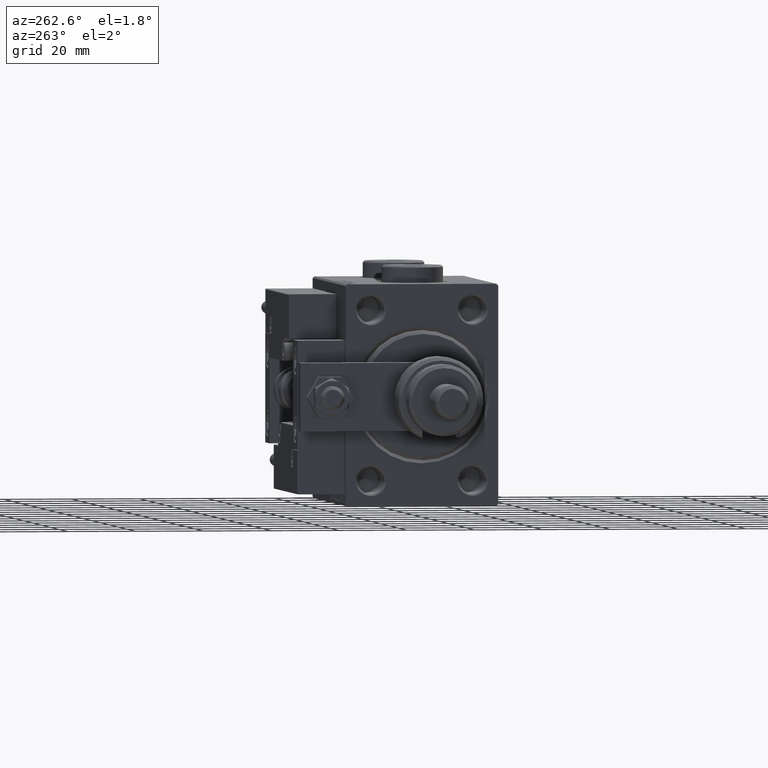
[diagram: clean part render]
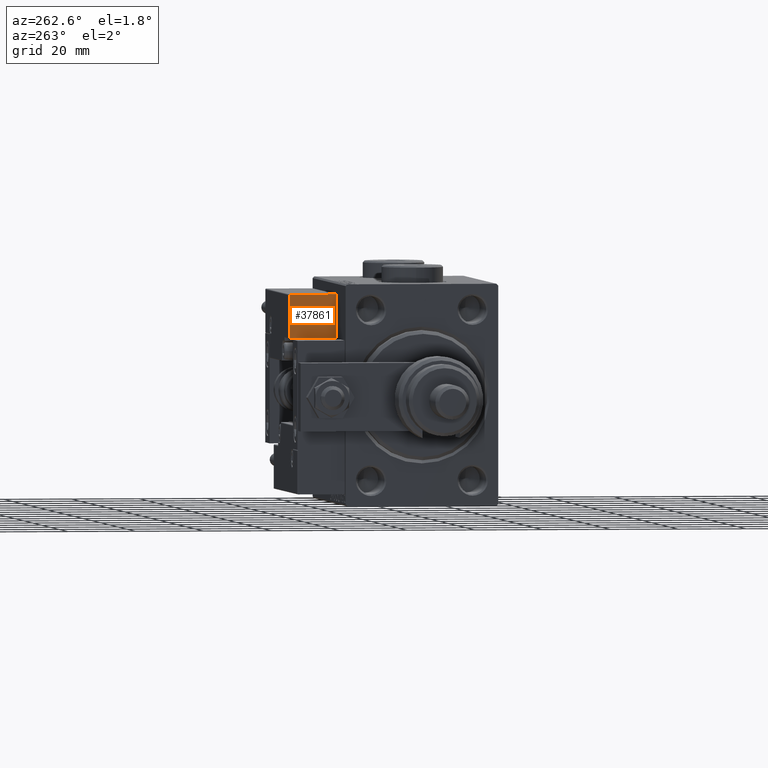
[diagram: same view with one face highlighted and labeled with its STEP entity id]
A machine part, auxiliary view. The second image highlights one B-rep face of the part: STEP entity #37861.
In plain terms, the highlighted planar face has unit normal (1, 0, 0).
Its self-contained STEP definition (entity closure, byte-faithful):
#110 = VERTEX_POINT ( 'NONE', #49552 ) ;
#3397 = ORIENTED_EDGE ( 'NONE', *, *, #51452, .T. ) ;
#6929 = DIRECTION ( 'NONE',  ( 0.000000000000000000, 1.000000000000000000, 0.000000000000000000 ) ) ;
#7490 = LINE ( 'NONE', #53704, #7746 ) ;
#7746 = VECTOR ( 'NONE', #6929, 1000.000000000000000 ) ;
#8418 = FACE_OUTER_BOUND ( 'NONE', #23626, .T. ) ;
#10630 = VERTEX_POINT ( 'NONE', #38578 ) ;
#10915 = LINE ( 'NONE', #49557, #15466 ) ;
#11954 = LINE ( 'NONE', #14282, #53283 ) ;
#13237 = ORIENTED_EDGE ( 'NONE', *, *, #27137, .T. ) ;
#14282 = CARTESIAN_POINT ( 'NONE',  ( 27.00000000000006395, 7.000000000000007994, 14.00000000000000000 ) ) ;
#15466 = VECTOR ( 'NONE', #19304, 1000.000000000000000 ) ;
#19304 = DIRECTION ( 'NONE',  ( -0.000000000000000000, -1.000000000000000000, -0.000000000000000000 ) ) ;
#19786 = DIRECTION ( 'NONE',  ( -0.000000000000000000, -0.000000000000000000, -1.000000000000000000 ) ) ;
#23626 = EDGE_LOOP ( 'NONE', ( #33193, #3397, #40752, #13237 ) ) ;
#24332 = EDGE_CURVE ( 'NONE', #43519, #10630, #34153, .T. ) ;
#25231 = PLANE ( 'NONE',  #40236 ) ;
#27137 = EDGE_CURVE ( 'NONE', #110, #10630, #7490, .T. ) ;
#27910 = CARTESIAN_POINT ( 'NONE',  ( 27.00000000000006395, 7.000000000000007994, 13.70000000000000107 ) ) ;
#28734 = EDGE_CURVE ( 'NONE', #48517, #110, #11954, .T. ) ;
#28893 = DIRECTION ( 'NONE',  ( 0.000000000000000000, 0.000000000000000000, 1.000000000000000000 ) ) ;
#29998 = VECTOR ( 'NONE', #38075, 1000.000000000000000 ) ;
#33193 = ORIENTED_EDGE ( 'NONE', *, *, #24332, .F. ) ;
#33622 = DIRECTION ( 'NONE',  ( -1.000000000000000000, 0.000000000000000000, 0.000000000000000000 ) ) ;
#34153 = LINE ( 'NONE', #51235, #29998 ) ;
#37861 = ADVANCED_FACE ( 'NONE', ( #8418 ), #25231, .F. ) ;
#38075 = DIRECTION ( 'NONE',  ( -0.000000000000000000, -0.000000000000000000, -1.000000000000000000 ) ) ;
#38578 = CARTESIAN_POINT ( 'NONE',  ( 27.00000000000006395, 20.00000000000001776, 0.000000000000000000 ) ) ;
#40236 = AXIS2_PLACEMENT_3D ( 'NONE', #50427, #33622, #28893 ) ;
#40752 = ORIENTED_EDGE ( 'NONE', *, *, #28734, .T. ) ;
#43519 = VERTEX_POINT ( 'NONE', #53681 ) ;
#48517 = VERTEX_POINT ( 'NONE', #27910 ) ;
#49552 = CARTESIAN_POINT ( 'NONE',  ( 27.00000000000006395, 7.000000000000007994, 0.000000000000000000 ) ) ;
#49557 = CARTESIAN_POINT ( 'NONE',  ( 27.00000000000006395, 7.000000000000007994, 13.70000000000000107 ) ) ;
#50427 = CARTESIAN_POINT ( 'NONE',  ( 27.00000000000006395, 7.000000000000007994, 14.00000000000000000 ) ) ;
#51235 = CARTESIAN_POINT ( 'NONE',  ( 27.00000000000006395, 20.00000000000001776, 14.00000000000000000 ) ) ;
#51452 = EDGE_CURVE ( 'NONE', #43519, #48517, #10915, .T. ) ;
#53283 = VECTOR ( 'NONE', #19786, 1000.000000000000000 ) ;
#53681 = CARTESIAN_POINT ( 'NONE',  ( 27.00000000000006395, 20.00000000000001776, 13.70000000000000107 ) ) ;
#53704 = CARTESIAN_POINT ( 'NONE',  ( 27.00000000000006395, 7.000000000000007994, 0.000000000000000000 ) ) ;